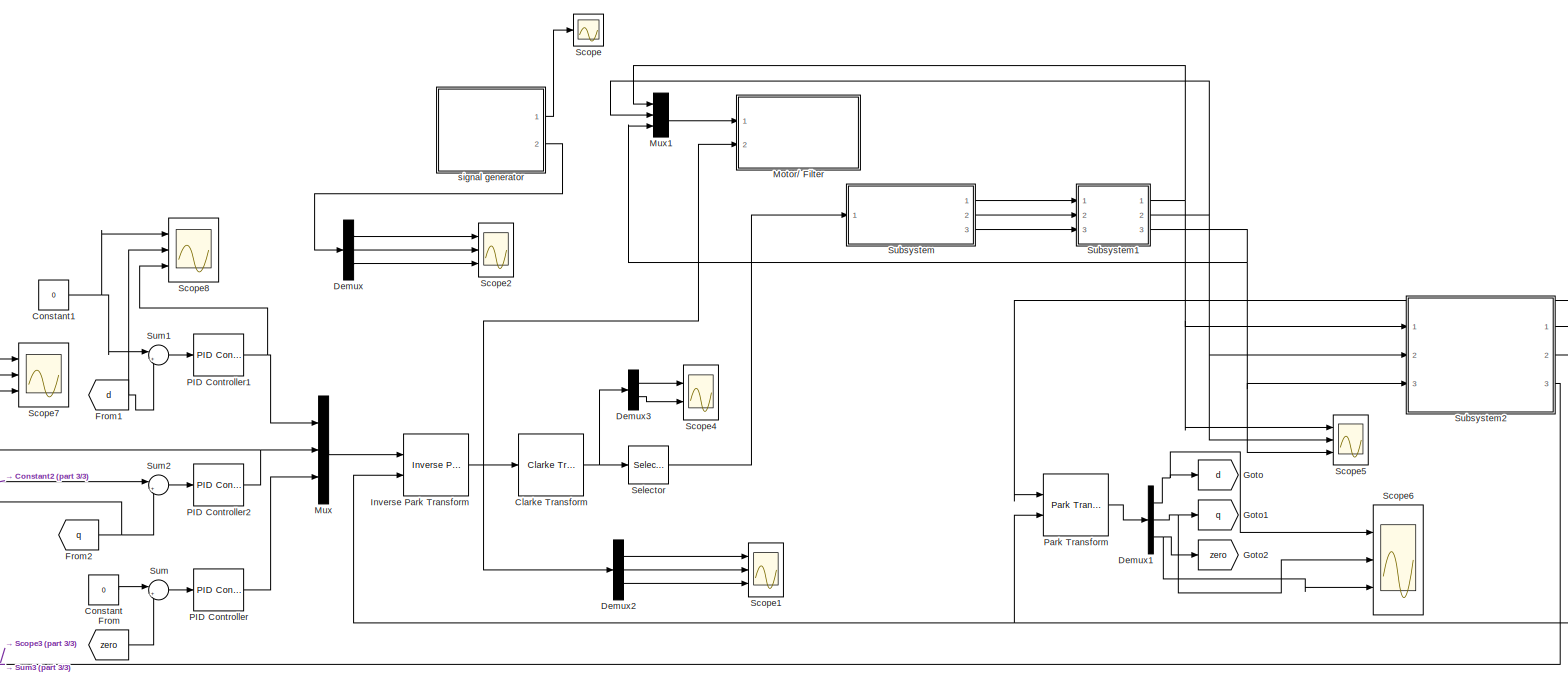
[diagram: root canvas - part 1/3, center side, full height]
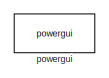
[diagram: root canvas - part 2/3, top right region]
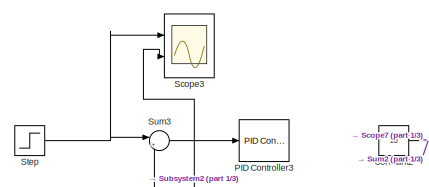
[diagram: root canvas - part 3/3, middle left region]
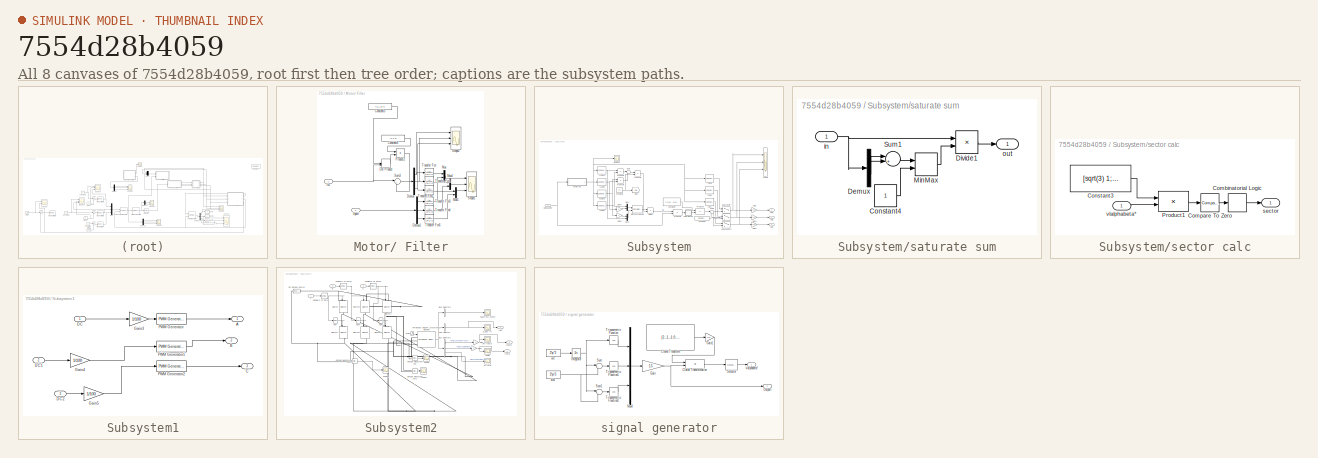
[diagram: thumbnail index - all 8 canvases of the model, root first then tree order]
MODEL slx_7554d28b4059
KIND model
CONFIG AbsTol = auto
CONFIG EnableMultiTasking = on
CONFIG FixedStep = auto
CONFIG MaxStep = 1e-6
CONFIG MinStep = auto
CONFIG RelTol = 1e-3
CONFIG SampleTimeConstraint = Unconstrained
CONFIG SolverName = ode45
CONFIG StartTime = 0.0
CONFIG StopTime = 0.5
BLOCK [Reference] Clarke Transform  REF=eeTransforms/Clarke Transform
  Ports = [1, 1]
  SourceBlock = eeTransforms/Clarke Transform
  SourceProductBaseCode = PS
  SourceType = Clarke Transform
BLOCK [Constant] Constant
  Value = 0
BLOCK [Constant] Constant1
  Value = 0
BLOCK [Constant] Constant2
  Value = 10
BLOCK [Demux] Demux
  Commented = on
  Outputs = 3
  Ports = [1, 3]
BLOCK [Demux] Demux1
  Outputs = 3
  Ports = [1, 3]
BLOCK [Demux] Demux2
  Outputs = 3
  Ports = [1, 3]
BLOCK [Demux] Demux3
  Outputs = 2
  Ports = [1, 2]
BLOCK [From] From
  GotoTag = zero
BLOCK [From] From1
  GotoTag = d
BLOCK [From] From2
  GotoTag = q
BLOCK [Goto] Goto
  GotoTag = d
BLOCK [Goto] Goto1
  GotoTag = q
BLOCK [Goto] Goto2
  GotoTag = zero
BLOCK [Reference] Inverse Park Transform  REF=eeTransforms/Inverse
Park Transform
  Ports = [2, 1]
  SourceBlock = eeTransforms/Inverse\nPark Transform
  SourceProductBaseCode = PS
  SourceType = Inverse Park Transform
BLOCK [SubSystem] Motor// Filter
  Ports = [2]
  RequestExecContextInheritance = off
BLOCK [Constant] Motor// Filter/Constant3
  SampleTime = -1
  Value = [1,1,1]/3
BLOCK [Constant] Motor// Filter/Constant6
  SampleTime = -1
  Value = [1;1;1]
BLOCK [Demux] Motor// Filter/Demux
  Outputs = 3
  Ports = [1, 3]
BLOCK [Demux] Motor// Filter/Demux1
  Outputs = 3
  Ports = [1, 3]
BLOCK [DotProduct] Motor// Filter/Dot Product
  OutDataTypeStr = Inherit: Inherit via internal rule
BLOCK [Inport] Motor// Filter/In1
BLOCK [Inport] Motor// Filter/Inport
  Port = 2
BLOCK [Mux] Motor// Filter/Mux
  DisplayOption = bar
  Inputs = 2
  Ports = [2, 1]
BLOCK [Mux] Motor// Filter/Mux4
  DisplayOption = bar
  Inputs = 2
  Ports = [2, 1]
BLOCK [Mux] Motor// Filter/Mux5
  DisplayOption = bar
  Inputs = 2
  Ports = [2, 1]
BLOCK [Product] Motor// Filter/Product2
  Ports = [2, 1]
BLOCK [Scope] Motor// Filter/Scope1
  Floating = off
  NumInputPorts = 3
  Ports = [3]
  ScopeSpecificationString = Simulink.scopes.TimeScopeBlockCfg('CurrentConfiguration', extmgr.ConfigurationSet(extmgr.Configuration('Core','General UI',true),extmgr.Configuration('Core','Source UI',true),extmgr.Configuration('Sources','WiredSimulink',true,'DataLoggingVariableName','ScopeData1'),extmgr.Configuration('Visuals','Time Domain',true,'SerializedDisplays',{struct('MinYLimReal','-0.12831','MaxYLimReal','0.0494','YLabe...<+2862ch>
BLOCK [Scope] Motor// Filter/Scope2
  Floating = off
  NumInputPorts = 3
  Ports = [3]
  ScopeSpecificationString = Simulink.scopes.TimeScopeBlockCfg('CurrentConfiguration', extmgr.ConfigurationSet(extmgr.Configuration('Core','General UI',true),extmgr.Configuration('Core','Source UI',true),extmgr.Configuration('Sources','WiredSimulink',true,'DataLoggingVariableName','ScopeData2'),extmgr.Configuration('Visuals','Time Domain',true,'SerializedDisplays',{struct('MinYLimReal','-17.49091','MaxYLimReal','17.2','YLabel...<+1454ch>
BLOCK [Sum] Motor// Filter/Sum3
  Inputs = |+-
  Ports = [2, 1]
BLOCK [TransferFcn] Motor// Filter/Transfer Fcn
  Denominator = [1e-3 1]
BLOCK [TransferFcn] Motor// Filter/Transfer Fcn1
  Denominator = [1e-3 1]
BLOCK [TransferFcn] Motor// Filter/Transfer Fcn2
  Denominator = [1e-3 1]
BLOCK [TransferFcn] Motor// Filter/Transfer Fcn3
  Denominator = [1e-3 1]
BLOCK [TransferFcn] Motor// Filter/Transfer Fcn4
  Denominator = [1e-3 1]
BLOCK [TransferFcn] Motor// Filter/Transfer Fcn5
  Denominator = [1e-3 1]
BLOCK [Mux] Mux
  DisplayOption = bar
  Inputs = 3
  Ports = [3, 1]
BLOCK [Mux] Mux1
  DisplayOption = bar
  Inputs = 3
  Ports = [3, 1]
BLOCK [Reference] PID Controller  REF=slpidlib/PID Controller
  Ports = [1, 1]
  SourceBlock = slpidlib/PID Controller
  SourceProductBaseCode = SL
  SourceType = PID 1dof
BLOCK [Reference] PID Controller1  REF=slpidlib/PID Controller
  Ports = [1, 1]
  SourceBlock = slpidlib/PID Controller
  SourceProductBaseCode = SL
  SourceType = PID 1dof
BLOCK [Reference] PID Controller2  REF=slpidlib/PID Controller
  Ports = [1, 1]
  SourceBlock = slpidlib/PID Controller
  SourceProductBaseCode = SL
  SourceType = PID 1dof
BLOCK [Reference] PID Controller3  REF=slpidlib/PID Controller
  Commented = on
  Ports = [1, 1]
  SourceBlock = slpidlib/PID Controller
  SourceProductBaseCode = SL
  SourceType = PID 1dof
BLOCK [Reference] Park Transform  REF=eeTransforms/Park Transform
  Ports = [2, 1]
  SourceBlock = eeTransforms/Park Transform
  SourceProductBaseCode = PS
  SourceType = Park Transform
BLOCK [Scope] Scope
  Commented = on
  Floating = off
  NumInputPorts = 1
  Ports = [1]
  ScopeSpecificationString = Simulink.scopes.TimeScopeBlockCfg('CurrentConfiguration', extmgr.ConfigurationSet(extmgr.Configuration('Core','General UI',true),extmgr.Configuration('Core','Source UI',true),extmgr.Configuration('Sources','WiredSimulink',true),extmgr.Configuration('Visuals','Time Domain',true,'SerializedDisplays',{struct('MinYLimReal','-25.00000','MaxYLimReal','25.00000','YLabelReal','','MinYLimMag','0.00000','Ma...<+1440ch>
BLOCK [Scope] Scope1
  Floating = off
  NumInputPorts = 3
  Ports = [3]
  ScopeSpecificationString = Simulink.scopes.TimeScopeBlockCfg('CurrentConfiguration', extmgr.ConfigurationSet(extmgr.Configuration('Core','General UI',true),extmgr.Configuration('Core','Source UI',true),extmgr.Configuration('Sources','WiredSimulink',true,'DataLoggingVariableName','ScopeData9'),extmgr.Configuration('Visuals','Time Domain',true,'SerializedDisplays',{struct('MinYLimReal','-193.07748','MaxYLimReal','245.07502','...<+1474ch>
BLOCK [Scope] Scope2
  Commented = on
  Floating = off
  NumInputPorts = 3
  Ports = [3]
  ScopeSpecificationString = Simulink.scopes.TimeScopeBlockCfg('CurrentConfiguration', extmgr.ConfigurationSet(extmgr.Configuration('Core','General UI',true),extmgr.Configuration('Core','Source UI',true),extmgr.Configuration('Sources','WiredSimulink',true,'DataLoggingVariableName','ScopeData3'),extmgr.Configuration('Visuals','Time Domain',true,'SerializedDisplays',{struct('MinYLimReal','-25.00000','MaxYLimReal','25.00000','YL...<+1438ch>
BLOCK [Scope] Scope3
  Commented = on
  Floating = off
  NumInputPorts = 2
  Ports = [2]
  ScopeSpecificationString = Simulink.scopes.TimeScopeBlockCfg('CurrentConfiguration', extmgr.ConfigurationSet(extmgr.Configuration('Core','General UI',true),extmgr.Configuration('Core','Source UI',true),extmgr.Configuration('Sources','WiredSimulink',true,'DataLoggingVariableName','ScopeData10'),extmgr.Configuration('Visuals','Time Domain',true,'SerializedDisplays',{struct('MinYLimReal','-11.11189','MaxYLimReal','12.34577','Y...<+1511ch>
BLOCK [Scope] Scope4
  Floating = off
  NumInputPorts = 2
  Ports = [2]
  ScopeSpecificationString = Simulink.scopes.TimeScopeBlockCfg('CurrentConfiguration', extmgr.ConfigurationSet(extmgr.Configuration('Core','General UI',true),extmgr.Configuration('Core','Source UI',true),extmgr.Configuration('Sources','WiredSimulink',true,'DataLoggingVariableName','ScopeData11'),extmgr.Configuration('Visuals','Time Domain',true,'SerializedDisplays',{struct('MinYLimReal','-0.6867','MaxYLimReal','0.35736','YLab...<+1491ch>
BLOCK [Scope] Scope5
  Floating = off
  NumInputPorts = 3
  Ports = [3]
  ScopeSpecificationString = Simulink.scopes.TimeScopeBlockCfg('CurrentConfiguration', extmgr.ConfigurationSet(extmgr.Configuration('Core','General UI',true),extmgr.Configuration('Core','Source UI',true),extmgr.Configuration('Sources','WiredSimulink',true,'DataLoggingVariableName','ScopeData2'),extmgr.Configuration('Visuals','Time Domain',true,'SerializedDisplays',{struct('MinYLimReal','-0.125','MaxYLimReal','1.125','YLabelRe...<+2846ch>
BLOCK [Scope] Scope6
  Floating = off
  NumInputPorts = 3
  Ports = [3]
  ScopeSpecificationString = Simulink.scopes.TimeScopeBlockCfg('CurrentConfiguration', extmgr.ConfigurationSet(extmgr.Configuration('Core','General UI',true),extmgr.Configuration('Core','Source UI',true),extmgr.Configuration('Sources','WiredSimulink',true,'DataLoggingVariableName','ScopeData12'),extmgr.Configuration('Visuals','Time Domain',true,'SerializedDisplays',{struct('MinYLimReal','-95.74141','MaxYLimReal','115.26681','...<+2789ch>
BLOCK [Scope] Scope7
  Floating = off
  NumInputPorts = 3
  Ports = [3]
  ScopeSpecificationString = Simulink.scopes.TimeScopeBlockCfg('CurrentConfiguration', extmgr.ConfigurationSet(extmgr.Configuration('Core','General UI',true),extmgr.Configuration('Core','Source UI',true),extmgr.Configuration('Sources','WiredSimulink',true,'DataLoggingVariableName','ScopeData13'),extmgr.Configuration('Visuals','Time Domain',true,'SerializedDisplays',{struct('MinYLimReal','9.00000','MaxYLimReal','11.00000','YLa...<+2861ch>
BLOCK [Scope] Scope8
  Floating = off
  NumInputPorts = 3
  Ports = [3]
  ScopeSpecificationString = Simulink.scopes.TimeScopeBlockCfg('CurrentConfiguration', extmgr.ConfigurationSet(extmgr.Configuration('Core','General UI',true),extmgr.Configuration('Core','Source UI',true),extmgr.Configuration('Sources','WiredSimulink',true,'DataLoggingVariableName','ScopeData1'),extmgr.Configuration('Visuals','Time Domain',true,'SerializedDisplays',{struct('MinYLimReal','-95.67819','MaxYLimReal','114.6978','YL...<+1529ch>
BLOCK [Selector] Selector
  IndexOptions = Index vector (dialog)
  Indices = [1 2]
  InputPortWidth = 3
  OutputSizes = 1
  Ports = [1, 1]
BLOCK [Step] Step
  After = 10
  Commented = on
  Time = 0.03
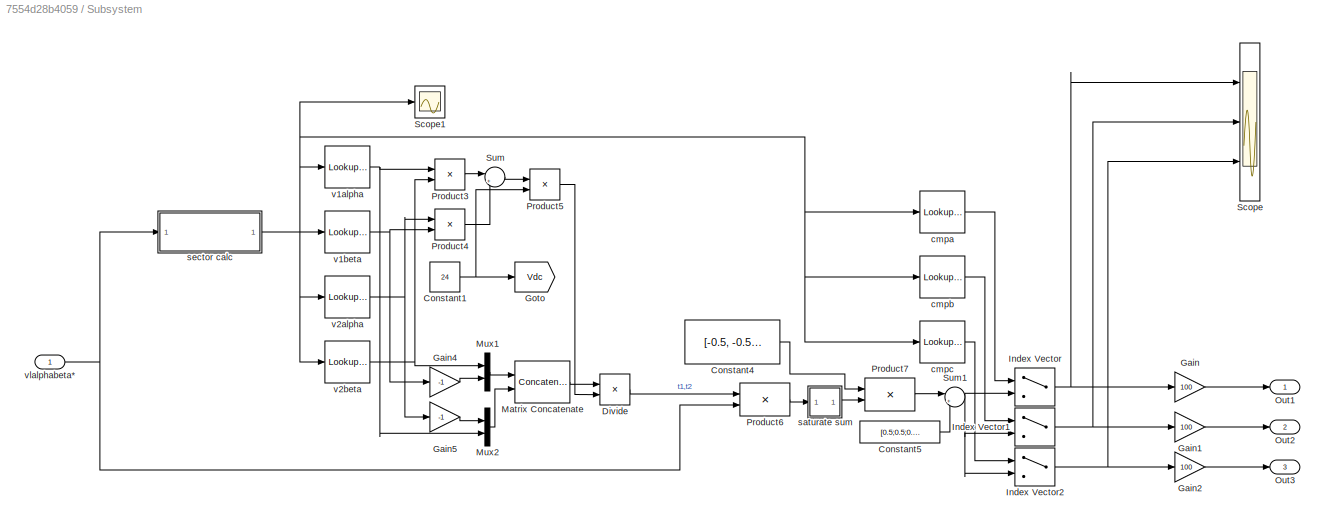
BLOCK [SubSystem] Subsystem
  Ports = [1, 3]
  RequestExecContextInheritance = off
BLOCK [Constant] Subsystem/Constant1
  Value = 24
BLOCK [Constant] Subsystem/Constant4
  SampleTime = -1
  Value = [-0.5, -0.5; 0.5, -0.5; 0.5, 0.5]
BLOCK [Constant] Subsystem/Constant5
  SampleTime = -1
  Value = [0.5;0.5;0.5]
BLOCK [Product] Subsystem/Divide
  Inputs = */
  Ports = [2, 1]
BLOCK [Gain] Subsystem/Gain
  Gain = 100
BLOCK [Gain] Subsystem/Gain1
  Gain = 100
BLOCK [Gain] Subsystem/Gain2
  Gain = 100
BLOCK [Gain] Subsystem/Gain4
  Gain = -1
BLOCK [Gain] Subsystem/Gain5
  Gain = -1
BLOCK [Goto] Subsystem/Goto
  GotoTag = Vdc
BLOCK [MultiPortSwitch] Subsystem/Index Vector
  DataPortOrder = Zero-based contiguous
  InputSameDT = off
  Inputs = 1
  Ports = [2, 1]
  SaturateOnIntegerOverflow = off
  zeroidx = on
BLOCK [MultiPortSwitch] Subsystem/Index Vector1
  DataPortOrder = Zero-based contiguous
  InputSameDT = off
  Inputs = 1
  Ports = [2, 1]
  SaturateOnIntegerOverflow = off
  zeroidx = on
BLOCK [MultiPortSwitch] Subsystem/Index Vector2
  DataPortOrder = Zero-based contiguous
  InputSameDT = off
  Inputs = 1
  Ports = [2, 1]
  SaturateOnIntegerOverflow = off
  zeroidx = on
BLOCK [Concatenate] Subsystem/Matrix Concatenate
  ConcatenateDimension = 2
  Mode = Multidimensional array
  Ports = [2, 1]
BLOCK [Mux] Subsystem/Mux1
  DisplayOption = bar
  Inputs = 2
  Ports = [2, 1]
BLOCK [Mux] Subsystem/Mux2
  DisplayOption = bar
  Inputs = 2
  Ports = [2, 1]
BLOCK [Outport] Subsystem/Out1
BLOCK [Outport] Subsystem/Out2
  Port = 2
BLOCK [Outport] Subsystem/Out3
  Port = 3
BLOCK [Product] Subsystem/Product3
  Ports = [2, 1]
  RndMeth = Zero
BLOCK [Product] Subsystem/Product4
  Ports = [2, 1]
  RndMeth = Zero
BLOCK [Product] Subsystem/Product5
  Ports = [2, 1]
  RndMeth = Zero
BLOCK [Product] Subsystem/Product6
  Multiplication = Matrix(*)
  Ports = [2, 1]
  RndMeth = Zero
BLOCK [Product] Subsystem/Product7
  Multiplication = Matrix(*)
  Ports = [2, 1]
  RndMeth = Zero
BLOCK [Scope] Subsystem/Scope
  Floating = off
  NumInputPorts = 3
  Ports = [3]
  ScopeSpecificationString = Simulink.scopes.TimeScopeBlockCfg('CurrentConfiguration', extmgr.ConfigurationSet(extmgr.Configuration('Core','General UI',true),extmgr.Configuration('Core','Source UI',true),extmgr.Configuration('Sources','WiredSimulink',true,'DataLoggingVariableName','ScopeData4'),extmgr.Configuration('Visuals','Time Domain',true,'SerializedDisplays',{struct('MinYLimReal','-0.125','MaxYLimReal','1.125','YLabelRe...<+1462ch>
BLOCK [Scope] Subsystem/Scope1
  Floating = off
  NumInputPorts = 1
  Ports = [1]
  ScopeSpecificationString = Simulink.scopes.TimeScopeBlockCfg('CurrentConfiguration', extmgr.ConfigurationSet(extmgr.Configuration('Core','General UI',true),extmgr.Configuration('Core','Source UI',true),extmgr.Configuration('Sources','WiredSimulink',true,'DataLoggingVariableName','ScopeData1'),extmgr.Configuration('Visuals','Time Domain',true,'SerializedDisplays',{struct('MinYLimReal','-0.625','MaxYLimReal','5.625','YLabelRe...<+1429ch>
BLOCK [Sum] Subsystem/Sum
  Inputs = |+-
  Ports = [2, 1]
BLOCK [Sum] Subsystem/Sum1
  Inputs = |++
  Ports = [2, 1]
BLOCK [LookupNDDirect] Subsystem/cmpa
  NumberOfTableDimensions = 1
  Ports = [1, 1]
  Table = [2,1,0,0,1,2]
BLOCK [LookupNDDirect] Subsystem/cmpb
  NumberOfTableDimensions = 1
  Ports = [1, 1]
  Table = [1,2,2,1,0,0]
BLOCK [LookupNDDirect] Subsystem/cmpc
  NumberOfTableDimensions = 1
  Ports = [1, 1]
  Table = [0,0,1,2,2,1]
BLOCK [SubSystem] Subsystem/saturate sum
  Ports = [1, 1]
  RequestExecContextInheritance = off
BLOCK [Constant] Subsystem/saturate sum/Constant4
  SampleTime = -1
BLOCK [Demux] Subsystem/saturate sum/Demux
  Outputs = 2
  Ports = [1, 2]
BLOCK [Product] Subsystem/saturate sum/Divide1
  Inputs = */
  Ports = [2, 1]
BLOCK [MinMax] Subsystem/saturate sum/MinMax
  Function = max
  Inputs = 2
  Ports = [2, 1]
BLOCK [Sum] Subsystem/saturate sum/Sum1
  Inputs = |++
  Ports = [2, 1]
BLOCK [Inport] Subsystem/saturate sum/in
BLOCK [Outport] Subsystem/saturate sum/out
BLOCK [SubSystem] Subsystem/sector calc
  Ports = [1, 1]
  RequestExecContextInheritance = off
BLOCK [CombinatorialLogic] Subsystem/sector calc/Combinatorial Logic
  TruthTable = [3;3;1;2;5;4;0;0]
BLOCK [Reference] Subsystem/sector calc/Compare To Zero  REF=simulink/Logic and Bit
Operations/Compare
To Zero
  Ports = [1, 1]
  SourceBlock = simulink/Logic and Bit\nOperations/Compare\nTo Zero
  SourceProductBaseCode = SL
  SourceType = Compare To Zero
BLOCK [Constant] Subsystem/sector calc/Constant3
  SampleTime = -1
  Value = [sqrt(3) 1;0,-1;-sqrt(3), 1]
BLOCK [Product] Subsystem/sector calc/Product1
  Multiplication = Matrix(*)
  Ports = [2, 1]
  RndMeth = Zero
BLOCK [Outport] Subsystem/sector calc/sector
BLOCK [Inport] Subsystem/sector calc/vlalphabeta*
BLOCK [LookupNDDirect] Subsystem/v1alpha
  NumberOfTableDimensions = 1
  Ports = [1, 1]
  Table = [1/3,1/3,-2/3,-2/3,1/3,1/3]
BLOCK [LookupNDDirect] Subsystem/v1beta
  NumberOfTableDimensions = 1
  Ports = [1, 1]
  Table = [-sqrt(3)/3,-sqrt(3)/3,0,0,sqrt(3)/3,sqrt(3)/3]
BLOCK [LookupNDDirect] Subsystem/v2alpha
  NumberOfTableDimensions = 1
  Ports = [1, 1]
  Table = [2/3,-1/3,-1/3,-1/3,-1/3,2/3]
BLOCK [LookupNDDirect] Subsystem/v2beta
  NumberOfTableDimensions = 1
  Ports = [1, 1]
  Table = [0,-sqrt(3)/3,-sqrt(3)/3,sqrt(3)/3,sqrt(3)/3,0]
BLOCK [Inport] Subsystem/vlalphabeta*
BLOCK [SubSystem] Subsystem1
  Ports = [3, 3]
  RequestExecContextInheritance = off
BLOCK [Outport] Subsystem1/A
BLOCK [Outport] Subsystem1/B
  Port = 2
BLOCK [Outport] Subsystem1/C
  Port = 3
BLOCK [Inport] Subsystem1/DC
BLOCK [Inport] Subsystem1/DC1
  Port = 2
BLOCK [Inport] Subsystem1/DC2
  Port = 3
BLOCK [Gain] Subsystem1/Gain3
  Gain = 1/100
BLOCK [Gain] Subsystem1/Gain4
  Gain = 1/100
BLOCK [Gain] Subsystem1/Gain5
  Gain = 1/100
BLOCK [Reference] Subsystem1/PWM Generator  REF=eePwmGenerator/PWM Generator
  Ports = [1, 1]
  SourceBlock = eePwmGenerator/PWM Generator
  SourceProductBaseCode = PS
  SourceType = PWM Generator
BLOCK [Reference] Subsystem1/PWM Generator1  REF=eePwmGenerator/PWM Generator
  Ports = [1, 1]
  SourceBlock = eePwmGenerator/PWM Generator
  SourceProductBaseCode = PS
  SourceType = PWM Generator
BLOCK [Reference] Subsystem1/PWM Generator2  REF=eePwmGenerator/PWM Generator
  Ports = [1, 1]
  SourceBlock = eePwmGenerator/PWM Generator
  SourceProductBaseCode = PS
  SourceType = PWM Generator
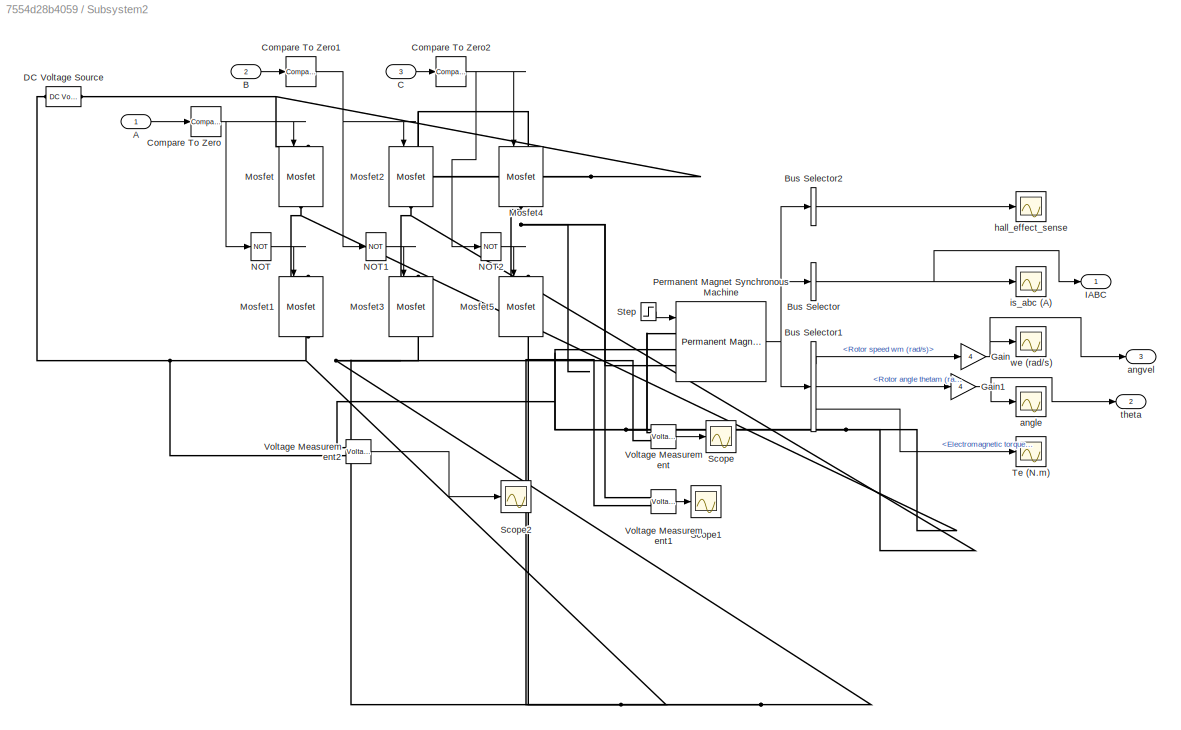
BLOCK [SubSystem] Subsystem2
  Ports = [3, 3]
  RequestExecContextInheritance = off
BLOCK [Inport] Subsystem2/A
BLOCK [Inport] Subsystem2/B
  Port = 2
BLOCK [BusSelector] Subsystem2/Bus Selector
  OutputAsBus = on
  OutputSignals = Stator current is_a (A),Stator current is_b (A),Stator current is_c (A)
  Ports = [1, 1]
BLOCK [BusSelector] Subsystem2/Bus Selector1
  OutputSignals = Rotor speed wm (rad/s),Rotor angle thetam (rad),Electromagnetic torque Te (N*m)
  Ports = [1, 3]
BLOCK [BusSelector] Subsystem2/Bus Selector2
  OutputAsBus = on
  OutputSignals = Hall effect signal h_a,Hall effect signal h_b,Hall effect signal h_c
  Ports = [1, 1]
BLOCK [Inport] Subsystem2/C
  Port = 3
BLOCK [Reference] Subsystem2/Compare To Zero  REF=simulink/Logic and Bit
Operations/Compare
To Zero
  Ports = [1, 1]
  SourceBlock = simulink/Logic and Bit\nOperations/Compare\nTo Zero
  SourceProductBaseCode = SL
  SourceType = Compare To Zero
BLOCK [Reference] Subsystem2/Compare To Zero1  REF=simulink/Logic and Bit
Operations/Compare
To Zero
  Ports = [1, 1]
  SourceBlock = simulink/Logic and Bit\nOperations/Compare\nTo Zero
  SourceProductBaseCode = SL
  SourceType = Compare To Zero
BLOCK [Reference] Subsystem2/Compare To Zero2  REF=simulink/Logic and Bit
Operations/Compare
To Zero
  Ports = [1, 1]
  SourceBlock = simulink/Logic and Bit\nOperations/Compare\nTo Zero
  SourceProductBaseCode = SL
  SourceType = Compare To Zero
BLOCK [Reference] Subsystem2/DC Voltage Source  REF=spsDCVoltageSourceLib/DC Voltage Source
  NameLocation = left
  Ports = [0, 0, 0, 0, 0, 1, 1]
  SourceBlock = spsDCVoltageSourceLib/DC Voltage Source
  SourceProductBaseCode = PS
  SourceType = DC Voltage Source
BLOCK [Gain] Subsystem2/Gain
  Gain = 4
  OutDataTypeStr = Inherit: Same as input
  ParamDataTypeStr = Inherit: Same as input
  SaturateOnIntegerOverflow = on
BLOCK [Gain] Subsystem2/Gain1
  Gain = 4
  OutDataTypeStr = Inherit: Same as input
  ParamDataTypeStr = Inherit: Same as input
  SaturateOnIntegerOverflow = on
BLOCK [Outport] Subsystem2/IABC
BLOCK [Reference] Subsystem2/Mosfet  REF=spsMosfetLib/Mosfet
  NameLocation = left
  Ports = [1, 0, 0, 0, 0, 1, 1]
  SourceBlock = spsMosfetLib/Mosfet
  SourceProductBaseCode = PS
  SourceType = Mosfet
BLOCK [Reference] Subsystem2/Mosfet1  REF=spsMosfetLib/Mosfet
  NameLocation = left
  Ports = [1, 1, 0, 0, 0, 1, 1]
  SourceBlock = spsMosfetLib/Mosfet
  SourceProductBaseCode = PS
  SourceType = Mosfet
BLOCK [Reference] Subsystem2/Mosfet2  REF=spsMosfetLib/Mosfet
  NameLocation = left
  Ports = [1, 0, 0, 0, 0, 1, 1]
  SourceBlock = spsMosfetLib/Mosfet
  SourceProductBaseCode = PS
  SourceType = Mosfet
BLOCK [Reference] Subsystem2/Mosfet3  REF=spsMosfetLib/Mosfet
  NameLocation = left
  Ports = [1, 1, 0, 0, 0, 1, 1]
  SourceBlock = spsMosfetLib/Mosfet
  SourceProductBaseCode = PS
  SourceType = Mosfet
BLOCK [Reference] Subsystem2/Mosfet4  REF=spsMosfetLib/Mosfet
  NameLocation = left
  Ports = [1, 0, 0, 0, 0, 1, 1]
  SourceBlock = spsMosfetLib/Mosfet
  SourceProductBaseCode = PS
  SourceType = Mosfet
BLOCK [Reference] Subsystem2/Mosfet5  REF=spsMosfetLib/Mosfet
  NameLocation = left
  Ports = [1, 1, 0, 0, 0, 1, 1]
  SourceBlock = spsMosfetLib/Mosfet
  SourceProductBaseCode = PS
  SourceType = Mosfet
BLOCK [Logic] Subsystem2/NOT
  AllPortsSameDT = off
  Operator = NOT
  OutDataTypeStr = boolean
  Ports = [1, 1]
BLOCK [Logic] Subsystem2/NOT1
  AllPortsSameDT = off
  Operator = NOT
  OutDataTypeStr = boolean
  Ports = [1, 1]
BLOCK [Logic] Subsystem2/NOT2
  AllPortsSameDT = off
  Operator = NOT
  OutDataTypeStr = boolean
  Ports = [1, 1]
BLOCK [Reference] Subsystem2/Permanent Magnet Synchronous Machine  REF=spsPermanentMagnetSynchronousMachineLib/Permanent Magnet
Synchronous Machine
  Ports = [1, 1, 0, 0, 0, 3]
  SourceBlock = spsPermanentMagnetSynchronousMachineLib/Permanent Magnet\nSynchronous Machine
  SourceProductBaseCode = PS
  SourceType = Permanent Magnet Synchronous Machine
BLOCK [Scope] Subsystem2/Scope
  Floating = off
  NumInputPorts = 1
  Ports = [1]
  ScopeSpecificationString = Simulink.scopes.TimeScopeBlockCfg('CurrentConfiguration', extmgr.ConfigurationSet(extmgr.Configuration('Core','General UI',true),extmgr.Configuration('Core','Source UI',true),extmgr.Configuration('Sources','WiredSimulink',true,'DataLoggingVariableName','ScopeData5'),extmgr.Configuration('Visuals','Time Domain',true,'SerializedDisplays',{struct('MinYLimReal','-3.07744','MaxYLimReal','27.01848','YLa...<+1428ch>
BLOCK [Scope] Subsystem2/Scope1
  Floating = off
  NumInputPorts = 1
  Ports = [1]
  ScopeSpecificationString = Simulink.scopes.TimeScopeBlockCfg('CurrentConfiguration', extmgr.ConfigurationSet(extmgr.Configuration('Core','General UI',true),extmgr.Configuration('Core','Source UI',true),extmgr.Configuration('Sources','WiredSimulink',true,'DataLoggingVariableName','ScopeData6'),extmgr.Configuration('Visuals','Time Domain',true,'SerializedDisplays',{struct('MinYLimReal','-3.62981','MaxYLimReal','27.28745','YLa...<+1383ch>
BLOCK [Scope] Subsystem2/Scope2
  Floating = off
  NumInputPorts = 1
  Ports = [1]
  ScopeSpecificationString = Simulink.scopes.TimeScopeBlockCfg('CurrentConfiguration', extmgr.ConfigurationSet(extmgr.Configuration('Core','General UI',true),extmgr.Configuration('Core','Source UI',true),extmgr.Configuration('Sources','WiredSimulink',true,'DataLoggingVariableName','ScopeData7'),extmgr.Configuration('Visuals','Time Domain',true,'SerializedDisplays',{struct('MinYLimReal','-3.89494','MaxYLimReal','28.05868','YLa...<+1484ch>
BLOCK [Step] Subsystem2/Step
  Before = 3
  NameLocation = top
  SampleTime = 0
  Time = 0.04
BLOCK [Scope] Subsystem2/Te (N.m)
  Floating = off
  NumInputPorts = 1
  Ports = [1]
  ScopeSpecificationString = Simulink.scopes.TimeScopeBlockCfg('CurrentConfiguration', extmgr.ConfigurationSet(extmgr.Configuration('Core','General UI',true),extmgr.Configuration('Core','Source UI',true),extmgr.Configuration('Sources','WiredSimulink',true,'DataLoggingSaveFormat','Array','DataLoggingDecimation','1','DataLoggingDecimateData',true,'DataLoggingVariableName','ScopeData1'),extmgr.Configuration('Visuals','Time Domai...<+1706ch>
BLOCK [Reference] Subsystem2/Voltage Measurement  REF=spsVoltageMeasurementLib/Voltage Measurement
  Ports = [0, 1, 0, 0, 0, 2]
  SourceBlock = spsVoltageMeasurementLib/Voltage Measurement
  SourceProductBaseCode = PS
  SourceType = Voltage Measurement
  UserDataPersistent = on
BLOCK [Reference] Subsystem2/Voltage Measurement1  REF=spsVoltageMeasurementLib/Voltage Measurement
  Ports = [0, 1, 0, 0, 0, 2]
  SourceBlock = spsVoltageMeasurementLib/Voltage Measurement
  SourceProductBaseCode = PS
  SourceType = Voltage Measurement
  UserDataPersistent = on
BLOCK [Reference] Subsystem2/Voltage Measurement2  REF=spsVoltageMeasurementLib/Voltage Measurement
  Ports = [0, 1, 0, 0, 0, 2]
  SourceBlock = spsVoltageMeasurementLib/Voltage Measurement
  SourceProductBaseCode = PS
  SourceType = Voltage Measurement
  UserDataPersistent = on
BLOCK [Scope] Subsystem2/angle
  Floating = off
  NumInputPorts = 1
  Ports = [1]
  ScopeSpecificationString = Simulink.scopes.TimeScopeBlockCfg('CurrentConfiguration', extmgr.ConfigurationSet(extmgr.Configuration('Core','General UI',true),extmgr.Configuration('Core','Source UI',true),extmgr.Configuration('Sources','WiredSimulink',true,'DataLoggingSaveFormat','Array','DataLoggingDecimation','1','DataLoggingDecimateData',true,'DataLoggingVariableName','ScopeData4'),extmgr.Configuration('Visuals','Time Domai...<+1665ch>
BLOCK [Outport] Subsystem2/angvel
  Port = 3
BLOCK [Scope] Subsystem2/hall_effect_sense
  Floating = off
  NumInputPorts = 1
  Ports = [1]
  ScopeSpecificationString = Simulink.scopes.TimeScopeBlockCfg('CurrentConfiguration', extmgr.ConfigurationSet(extmgr.Configuration('Core','General UI',true),extmgr.Configuration('Core','Source UI',true),extmgr.Configuration('Sources','WiredSimulink',true,'DataLoggingSaveFormat','Array','DataLoggingDecimation','1','DataLoggingDecimateData',true,'DataLoggingVariableName','ScopeData8'),extmgr.Configuration('Visuals','Time Domai...<+1835ch>
BLOCK [Scope] Subsystem2/is_abc (A)
  Floating = off
  NumInputPorts = 1
  Ports = [1]
  ScopeSpecificationString = Simulink.scopes.TimeScopeBlockCfg('CurrentConfiguration', extmgr.ConfigurationSet(extmgr.Configuration('Core','General UI',true),extmgr.Configuration('Core','Source UI',true),extmgr.Configuration('Sources','WiredSimulink',true,'DataLoggingSaveFormat','Array','DataLoggingDecimation','1','DataLoggingDecimateData',true,'DataLoggingVariableName','ScopeData2'),extmgr.Configuration('Visuals','Time Domai...<+1863ch>
BLOCK [Outport] Subsystem2/theta
  Port = 2
BLOCK [Scope] Subsystem2/we (rad//s)
  Floating = off
  NumInputPorts = 1
  Ports = [1]
  ScopeSpecificationString = Simulink.scopes.TimeScopeBlockCfg('CurrentConfiguration', extmgr.ConfigurationSet(extmgr.Configuration('Core','General UI',true),extmgr.Configuration('Core','Source UI',true),extmgr.Configuration('Sources','WiredSimulink',true,'DataLoggingSaveFormat','Array','DataLoggingDecimation','1','DataLoggingDecimateData',true,'DataLoggingVariableName','ScopeData3'),extmgr.Configuration('Visuals','Time Domai...<+1659ch>
BLOCK [Sum] Sum
  Inputs = |+-
  Ports = [2, 1]
BLOCK [Sum] Sum1
  Inputs = |+-
  Ports = [2, 1]
BLOCK [Sum] Sum2
  Inputs = |+-
  Ports = [2, 1]
BLOCK [Sum] Sum3
  Commented = on
  Inputs = |+-
  Ports = [2, 1]
BLOCK [Reference] powergui  REF=spspowerguiLib/powergui
  Ports = []
  Priority = 1
  SourceBlock = spspowerguiLib/powergui
  SourceProductBaseCode = PS
  SourceType = PSB option menu block
BLOCK [SubSystem] signal generator
  Commented = on
  Ports = [0, 2]
  RequestExecContextInheritance = off
BLOCK [Constant] signal generator/Clarke Transform
  SampleTime = -1
  Value = [2,-1,-1;0,-sqrt(3),sqrt(3);1,1,1]
BLOCK [Product] signal generator/Clarke Transformation
  Multiplication = Matrix(*)
  Ports = [2, 1]
BLOCK [Gain] signal generator/Gain
  Gain = 15
BLOCK [Gain] signal generator/Gain1
  Gain = 1/3
BLOCK [Integrator] signal generator/Integrator
  Ports = [1, 1]
  ZeroCross = off
BLOCK [Mux] signal generator/Mux4
  DisplayOption = bar
  Inputs = 3
  Ports = [3, 1]
BLOCK [Outport] signal generator/Outport
  Port = 2
BLOCK [Selector] signal generator/Selector
  IndexOptions = Index vector (dialog)
  Indices = [1 2]
  InputPortWidth = 3
  OutputSizes = 1
  Ports = [1, 1]
BLOCK [Sum] signal generator/Sum
  Inputs = |+-
  Ports = [2, 1]
BLOCK [Sum] signal generator/Sum1
  Inputs = |++
  Ports = [2, 1]
BLOCK [Trigonometry] signal generator/Trigonometric Function
  Operator = cos
  Ports = [1, 1]
BLOCK [Trigonometry] signal generator/Trigonometric Function1
  Operator = cos
  Ports = [1, 1]
BLOCK [Trigonometry] signal generator/Trigonometric Function2
  Operator = cos
  Ports = [1, 1]
BLOCK [Outport] signal generator/vlalphabeta*
BLOCK [Constant] signal generator/we
  SampleTime = -1
  Value = 2*pi*2
BLOCK [Constant] signal generator/we1
  SampleTime = -1
  Value = 2*pi/3
NET Clarke Transform:1 -> Demux3:1, Selector:1
NET Constant1:1 -> Scope8:1, Sum1:1
NET Constant2:1 -> Scope7:1, Sum2:1
LINE Constant:1 -> Sum:1
NET Demux1:1 -> Goto:1, Scope6:1
NET Demux1:2 -> Goto1:1, Scope6:2
NET Demux1:3 -> Goto2:1, Scope6:3
LINE Demux2:1 -> Scope1:1
LINE Demux2:2 -> Scope1:2
LINE Demux2:3 -> Scope1:3
LINE Demux3:1 -> Scope4:1
LINE Demux3:2 -> Scope4:2
LINE Demux:1 -> Scope2:1
LINE Demux:2 -> Scope2:2
LINE Demux:3 -> Scope2:3
NET From1:1 -> Scope8:2, Sum1:2
NET From2:1 -> Scope7:2, Sum2:2
LINE From:1 -> Sum:2
NET Inverse Park Transform:1 -> Clarke Transform:1, Demux2:1, Motor// Filter:2
LINE Motor// Filter/Constant3:1 -> Motor// Filter/Dot Product:1
LINE Motor// Filter/Constant6:1 -> Motor// Filter/Product2:1
LINE Motor// Filter/Demux1:1 -> Motor// Filter/Transfer Fcn3:1
LINE Motor// Filter/Demux1:2 -> Motor// Filter/Transfer Fcn4:1
LINE Motor// Filter/Demux1:3 -> Motor// Filter/Transfer Fcn5:1
NET Motor// Filter/Demux:1 -> Motor// Filter/Scope2:1, Motor// Filter/Transfer Fcn:1
NET Motor// Filter/Demux:2 -> Motor// Filter/Scope2:2, Motor// Filter/Transfer Fcn1:1
NET Motor// Filter/Demux:3 -> Motor// Filter/Scope2:3, Motor// Filter/Transfer Fcn2:1
LINE Motor// Filter/Dot Product:1 -> Motor// Filter/Product2:2
NET Motor// Filter/In1:1 -> Motor// Filter/Dot Product:2, Motor// Filter/Sum3:1
LINE Motor// Filter/Inport:1 -> Motor// Filter/Demux1:1
LINE Motor// Filter/Mux4:1 -> Motor// Filter/Scope1:2
LINE Motor// Filter/Mux5:1 -> Motor// Filter/Scope1:3
LINE Motor// Filter/Mux:1 -> Motor// Filter/Scope1:1
LINE Motor// Filter/Product2:1 -> Motor// Filter/Sum3:2
LINE Motor// Filter/Sum3:1 -> Motor// Filter/Demux:1
LINE Motor// Filter/Transfer Fcn1:1 -> Motor// Filter/Mux4:1
LINE Motor// Filter/Transfer Fcn2:1 -> Motor// Filter/Mux5:1
LINE Motor// Filter/Transfer Fcn3:1 -> Motor// Filter/Mux:2
LINE Motor// Filter/Transfer Fcn4:1 -> Motor// Filter/Mux4:2
LINE Motor// Filter/Transfer Fcn5:1 -> Motor// Filter/Mux5:2
LINE Motor// Filter/Transfer Fcn:1 -> Motor// Filter/Mux:1
LINE Mux1:1 -> Motor// Filter:1
LINE Mux:1 -> Inverse Park Transform:1
NET PID Controller1:1 -> Mux:1, Scope8:3
NET PID Controller2:1 -> Mux:2, Scope7:3
LINE PID Controller:1 -> Mux:3
LINE Park Transform:1 -> Demux1:1
LINE Selector:1 -> Subsystem:1
NET Step:1 -> Scope3:1, Sum3:1
NET Subsystem/Constant1:1 -> Subsystem/Goto:1, Subsystem/Product5:2
LINE Subsystem/Constant4:1 -> Subsystem/Product7:1
LINE Subsystem/Constant5:1 -> Subsystem/Sum1:2
LINE Subsystem/Divide:1 -> Subsystem/Product6:1
LINE Subsystem/Gain1:1 -> Subsystem/Out2:1
LINE Subsystem/Gain2:1 -> Subsystem/Out3:1
LINE Subsystem/Gain4:1 -> Subsystem/Mux1:2
LINE Subsystem/Gain5:1 -> Subsystem/Mux2:1
LINE Subsystem/Gain:1 -> Subsystem/Out1:1
NET Subsystem/Index Vector1:1 -> Subsystem/Gain1:1, Subsystem/Scope:2
NET Subsystem/Index Vector2:1 -> Subsystem/Gain2:1, Subsystem/Scope:3
NET Subsystem/Index Vector:1 -> Subsystem/Gain:1, Subsystem/Scope:1
LINE Subsystem/Matrix Concatenate:1 -> Subsystem/Divide:1
LINE Subsystem/Mux1:1 -> Subsystem/Matrix Concatenate:1
LINE Subsystem/Mux2:1 -> Subsystem/Matrix Concatenate:2
LINE Subsystem/Product3:1 -> Subsystem/Sum:1
LINE Subsystem/Product4:1 -> Subsystem/Sum:2
LINE Subsystem/Product5:1 -> Subsystem/Divide:2
LINE Subsystem/Product6:1 -> Subsystem/saturate sum:1
LINE Subsystem/Product7:1 -> Subsystem/Sum1:1
NET Subsystem/Sum1:1 -> Subsystem/Index Vector1:2, Subsystem/Index Vector2:2, Subsystem/Index Vector:2
LINE Subsystem/Sum:1 -> Subsystem/Product5:1
LINE Subsystem/cmpa:1 -> Subsystem/Index Vector:1
LINE Subsystem/cmpb:1 -> Subsystem/Index Vector1:1
LINE Subsystem/cmpc:1 -> Subsystem/Index Vector2:1
LINE Subsystem/saturate sum/Constant4:1 -> Subsystem/saturate sum/MinMax:2
LINE Subsystem/saturate sum/Demux:1 -> Subsystem/saturate sum/Sum1:1
LINE Subsystem/saturate sum/Demux:2 -> Subsystem/saturate sum/Sum1:2
LINE Subsystem/saturate sum/Divide1:1 -> Subsystem/saturate sum/out:1
LINE Subsystem/saturate sum/MinMax:1 -> Subsystem/saturate sum/Divide1:2
LINE Subsystem/saturate sum/Sum1:1 -> Subsystem/saturate sum/MinMax:1
NET Subsystem/saturate sum/in:1 -> Subsystem/saturate sum/Demux:1, Subsystem/saturate sum/Divide1:1
LINE Subsystem/saturate sum:1 -> Subsystem/Product7:2
LINE Subsystem/sector calc/Combinatorial Logic:1 -> Subsystem/sector calc/sector:1
LINE Subsystem/sector calc/Compare To Zero:1 -> Subsystem/sector calc/Combinatorial Logic:1
LINE Subsystem/sector calc/Constant3:1 -> Subsystem/sector calc/Product1:1
LINE Subsystem/sector calc/Product1:1 -> Subsystem/sector calc/Compare To Zero:1
LINE Subsystem/sector calc/vlalphabeta*:1 -> Subsystem/sector calc/Product1:2
NET Subsystem/sector calc:1 -> Subsystem/Scope1:1, Subsystem/cmpa:1, Subsystem/cmpb:1, Subsystem/cmpc:1, Subsystem/v1alpha:1, Subsystem/v1beta:1, Subsystem/v2alpha:1, Subsystem/v2beta:1
NET Subsystem/v1alpha:1 -> Subsystem/Mux2:2, Subsystem/Product3:1
NET Subsystem/v1beta:1 -> Subsystem/Gain4:1, Subsystem/Product4:2
NET Subsystem/v2alpha:1 -> Subsystem/Gain5:1, Subsystem/Product4:1
NET Subsystem/v2beta:1 -> Subsystem/Mux1:1, Subsystem/Product3:2
NET Subsystem/vlalphabeta*:1 -> Subsystem/Product6:2, Subsystem/sector calc:1
LINE Subsystem1/DC1:1 -> Subsystem1/Gain4:1
LINE Subsystem1/DC2:1 -> Subsystem1/Gain5:1
LINE Subsystem1/DC:1 -> Subsystem1/Gain3:1
LINE Subsystem1/Gain3:1 -> Subsystem1/PWM Generator:1
LINE Subsystem1/Gain4:1 -> Subsystem1/PWM Generator1:1
LINE Subsystem1/Gain5:1 -> Subsystem1/PWM Generator2:1
LINE Subsystem1/PWM Generator1:1 -> Subsystem1/B:1
LINE Subsystem1/PWM Generator2:1 -> Subsystem1/C:1
LINE Subsystem1/PWM Generator:1 -> Subsystem1/A:1
NET Subsystem1:1 -> Mux1:1, Scope5:1, Subsystem2:1
NET Subsystem1:2 -> Mux1:2, Scope5:2, Subsystem2:2
NET Subsystem1:3 -> Mux1:3, Scope5:3, Subsystem2:3
LINE Subsystem2/A:1 -> Subsystem2/Compare To Zero:1
LINE Subsystem2/B:1 -> Subsystem2/Compare To Zero1:1
LINE Subsystem2/Bus Selector1:1 -> Subsystem2/Gain:1
LINE Subsystem2/Bus Selector1:2 -> Subsystem2/Gain1:1
LINE Subsystem2/Bus Selector1:3 -> Subsystem2/Te (N.m):1
LINE Subsystem2/Bus Selector2:1 -> Subsystem2/hall_effect_sense:1
NET Subsystem2/Bus Selector:1 -> Subsystem2/IABC:1, Subsystem2/is_abc (A):1
LINE Subsystem2/C:1 -> Subsystem2/Compare To Zero2:1
NET Subsystem2/Compare To Zero1:1 -> Subsystem2/Mosfet2:1, Subsystem2/NOT1:1
NET Subsystem2/Compare To Zero2:1 -> Subsystem2/Mosfet4:1, Subsystem2/NOT2:1
NET Subsystem2/Compare To Zero:1 -> Subsystem2/Mosfet:1, Subsystem2/NOT:1
NET Subsystem2/Gain1:1 -> Subsystem2/angle:1, Subsystem2/theta:1
NET Subsystem2/Gain:1 -> Subsystem2/angvel:1, Subsystem2/we (rad//s):1
LINE Subsystem2/NOT1:1 -> Subsystem2/Mosfet3:1
LINE Subsystem2/NOT2:1 -> Subsystem2/Mosfet5:1
LINE Subsystem2/NOT:1 -> Subsystem2/Mosfet1:1
NET Subsystem2/Permanent Magnet Synchronous Machine:1 -> Subsystem2/Bus Selector1:1, Subsystem2/Bus Selector2:1, Subsystem2/Bus Selector:1
LINE Subsystem2/Step:1 -> Subsystem2/Permanent Magnet Synchronous Machine:1
LINE Subsystem2/Voltage Measurement1:1 -> Subsystem2/Scope1:1
LINE Subsystem2/Voltage Measurement2:1 -> Subsystem2/Scope2:1
LINE Subsystem2/Voltage Measurement:1 -> Subsystem2/Scope:1
LINE Subsystem2:1 -> Park Transform:1
NET Subsystem2:2 -> Inverse Park Transform:2, Park Transform:2
NET Subsystem2:3 -> Scope3:2, Sum3:2
LINE Subsystem:1 -> Subsystem1:1
LINE Subsystem:2 -> Subsystem1:2
LINE Subsystem:3 -> Subsystem1:3
LINE Sum1:1 -> PID Controller1:1
LINE Sum2:1 -> PID Controller2:1
LINE Sum3:1 -> PID Controller3:1
LINE Sum:1 -> PID Controller:1
LINE signal generator/Clarke Transform:1 -> signal generator/Gain1:1
LINE signal generator/Clarke Transformation:1 -> signal generator/Selector:1
LINE signal generator/Gain1:1 -> signal generator/Clarke Transformation:1
NET signal generator/Gain:1 -> signal generator/Clarke Transformation:2, signal generator/Outport:1
NET signal generator/Integrator:1 -> signal generator/Sum1:1, signal generator/Sum:1, signal generator/Trigonometric Function:1
LINE signal generator/Mux4:1 -> signal generator/Gain:1
LINE signal generator/Selector:1 -> signal generator/vlalphabeta*:1
LINE signal generator/Sum1:1 -> signal generator/Trigonometric Function2:1
LINE signal generator/Sum:1 -> signal generator/Trigonometric Function1:1
LINE signal generator/Trigonometric Function1:1 -> signal generator/Mux4:2
LINE signal generator/Trigonometric Function2:1 -> signal generator/Mux4:3
LINE signal generator/Trigonometric Function:1 -> signal generator/Mux4:1
NET signal generator/we1:1 -> signal generator/Sum1:2, signal generator/Sum:2
LINE signal generator/we:1 -> signal generator/Integrator:1
LINE signal generator:1 -> Scope:1
LINE signal generator:2 -> Demux:1
PNET net1: Subsystem2/DC Voltage Source:LConn1 -- Subsystem2/Mosfet1:RConn1 -- Subsystem2/Mosfet3:RConn1 -- Subsystem2/Mosfet5:RConn1 -- Subsystem2/Voltage Measurement1:LConn2 -- Subsystem2/Voltage Measurement2:LConn2 -- Subsystem2/Voltage Measurement:LConn2
PNET net2: Subsystem2/DC Voltage Source:RConn1 -- Subsystem2/Mosfet2:LConn1 -- Subsystem2/Mosfet4:LConn1 -- Subsystem2/Mosfet:LConn1
PNET net3: Subsystem2/Mosfet1:LConn1 -- Subsystem2/Mosfet:RConn1 -- Subsystem2/Permanent Magnet Synchronous Machine:LConn1 -- Subsystem2/Voltage Measurement:LConn1
PNET net4: Subsystem2/Mosfet2:RConn1 -- Subsystem2/Mosfet3:LConn1 -- Subsystem2/Permanent Magnet Synchronous Machine:LConn2 -- Subsystem2/Voltage Measurement2:LConn1
PNET net5: Subsystem2/Mosfet4:RConn1 -- Subsystem2/Mosfet5:LConn1 -- Subsystem2/Permanent Magnet Synchronous Machine:LConn3 -- Subsystem2/Voltage Measurement1:LConn1
note: NET lines group one-source signal fan-out (src -> all destinations, sorted); 1:1 wires keep LINE; PNET lines group multi-terminal physical nets as a canonical sorted terminal list (undirected conserving connections); 2-terminal nets keep the pairwise PLINE form
